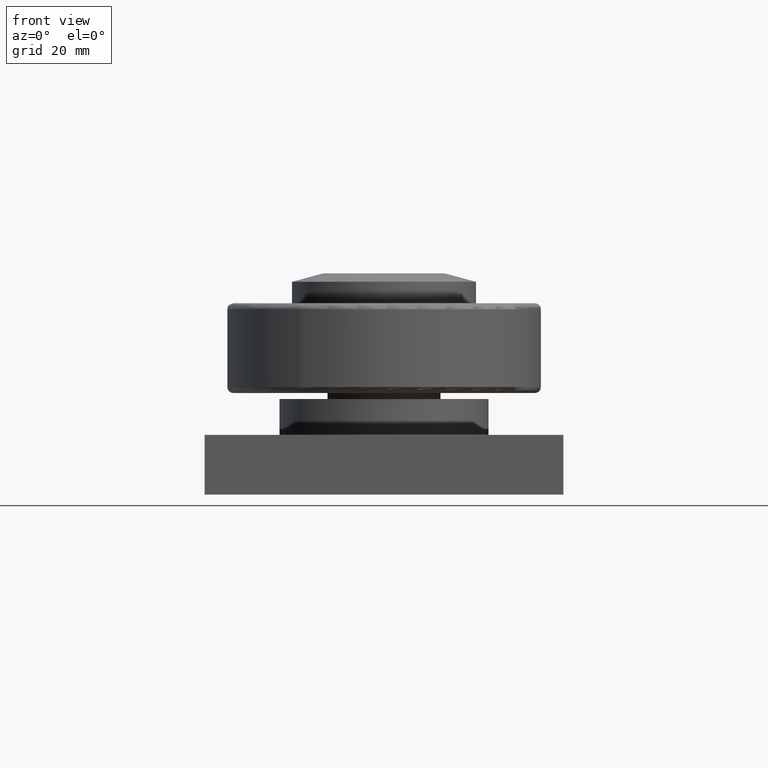
[diagram: clean part render]
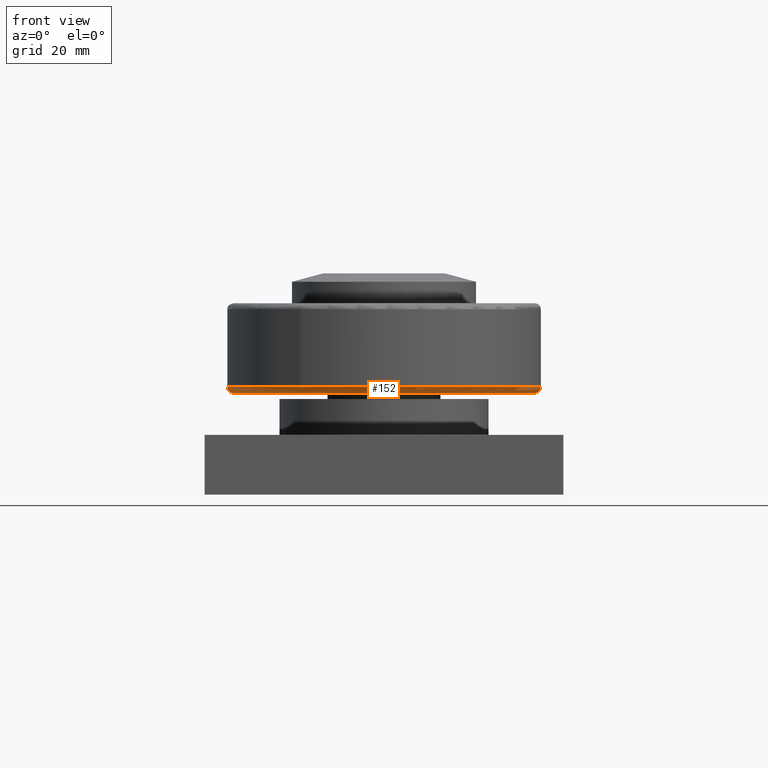
[diagram: same view with one face highlighted and labeled with its STEP entity id]
A machine part, front view. The second image highlights one B-rep face of the part: STEP entity #152.
In plain terms, the highlighted toroidal blend (fillet) surface has major radius 25.25 mm and minor (blend) radius 1 mm.
Its self-contained STEP definition (entity closure, byte-faithful):
#125=CARTESIAN_POINT('',(30.0,50.000000000000014,18.000000000000053));
#126=DIRECTION('',(0.0,0.0,-1.0));
#127=DIRECTION('',(-1.0,0.0,0.0));
#128=AXIS2_PLACEMENT_3D('',#125,#126,#127);
#129=TOROIDAL_SURFACE('',#128,25.250000000000004,1.0);
#130=CARTESIAN_POINT('',(16.027586957531035,27.777619979609675,18.000000000000036));
#131=VERTEX_POINT('',#130);
#132=CARTESIAN_POINT('',(30.0,50.000000000000014,18.000000000000053));
#133=DIRECTION('',(0.0,0.0,-1.0));
#134=DIRECTION('',(0.532282401617865,0.846566857919632,0.0));
#135=AXIS2_PLACEMENT_3D('',#132,#133,#134);
#136=CIRCLE('',#135,26.250000000000004);
#137=EDGE_CURVE('',#131,#131,#136,.T.);
#138=ORIENTED_EDGE('',*,*,#137,.T.);
#139=EDGE_LOOP('',(#138));
#140=FACE_OUTER_BOUND('',#139,.T.);
#141=CARTESIAN_POINT('',(16.559869359148905,28.624186837529315,17.000000000000032));
#142=VERTEX_POINT('',#141);
#143=CARTESIAN_POINT('',(30.0,50.000000000000014,17.000000000000057));
#144=DIRECTION('',(0.0,0.0,1.0));
#145=DIRECTION('',(0.532282401617865,0.846566857919632,0.0));
#146=AXIS2_PLACEMENT_3D('',#143,#144,#145);
#147=CIRCLE('',#146,25.25);
#148=EDGE_CURVE('',#142,#142,#147,.T.);
#149=ORIENTED_EDGE('',*,*,#148,.T.);
#150=EDGE_LOOP('',(#149));
#151=FACE_BOUND('',#150,.T.);
#152=ADVANCED_FACE('',(#140,#151),#129,.T.);